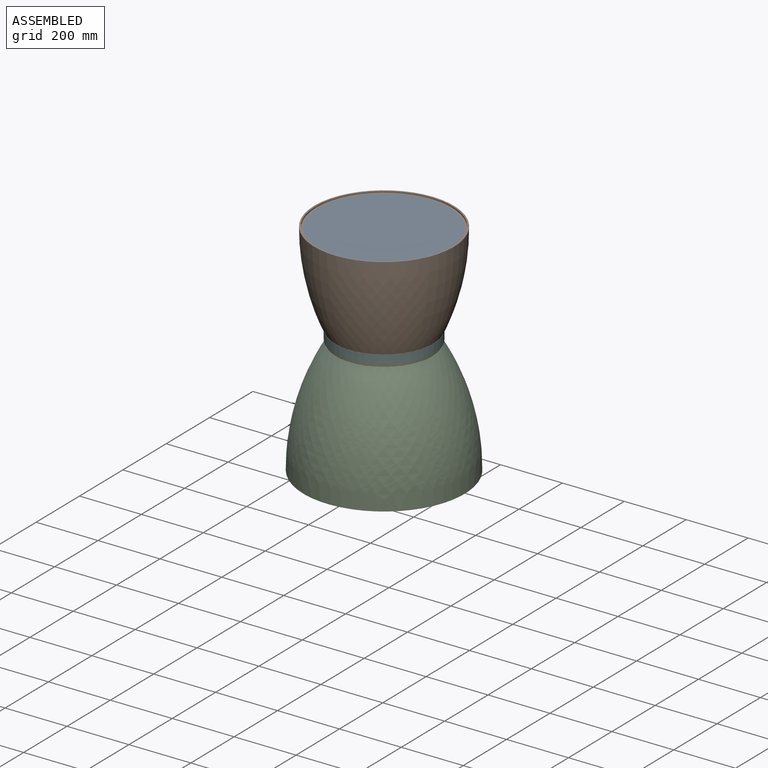
[diagram: assembled view]
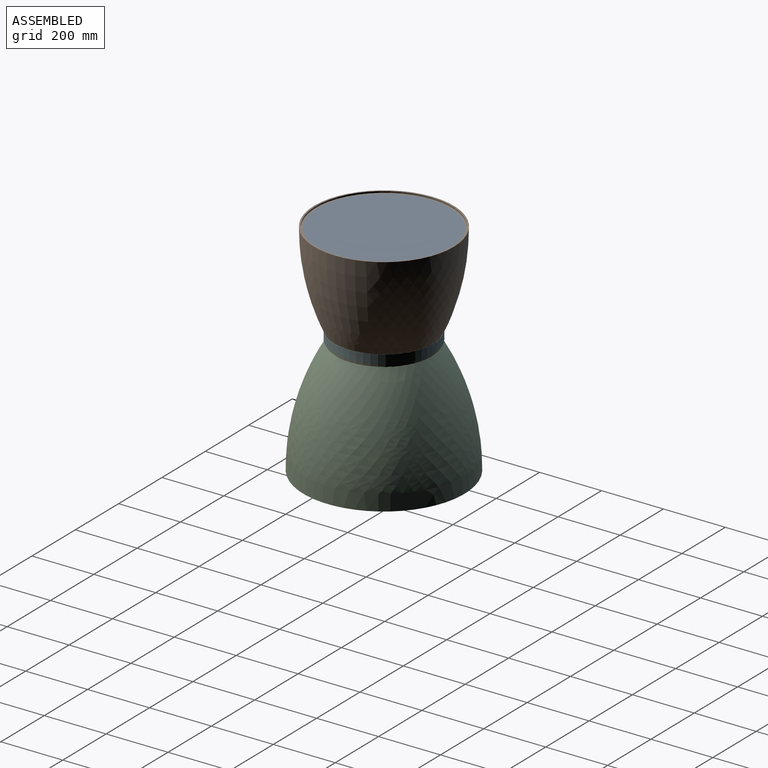
[diagram: assembled view, second angle]
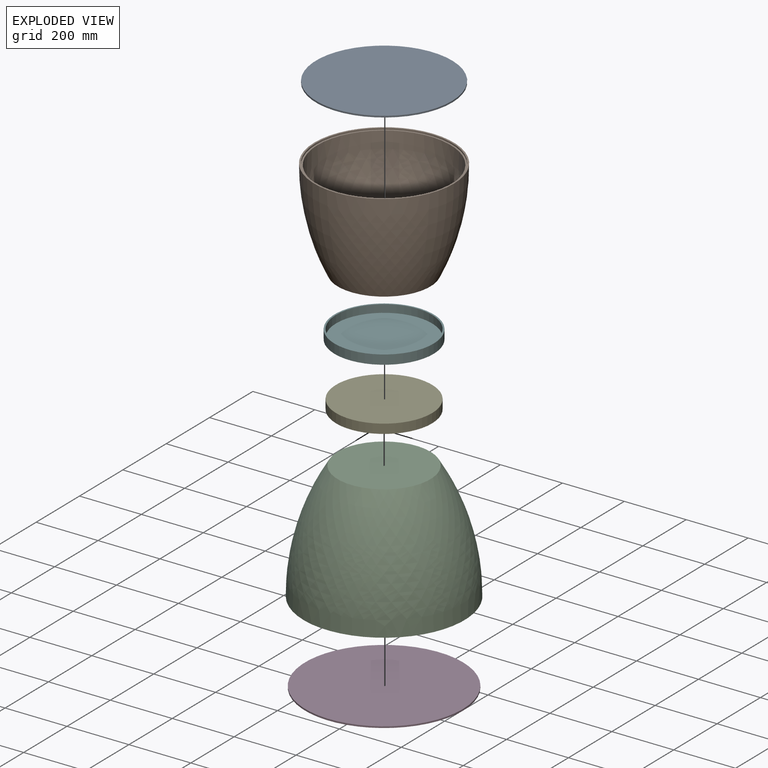
[diagram: exploded view]
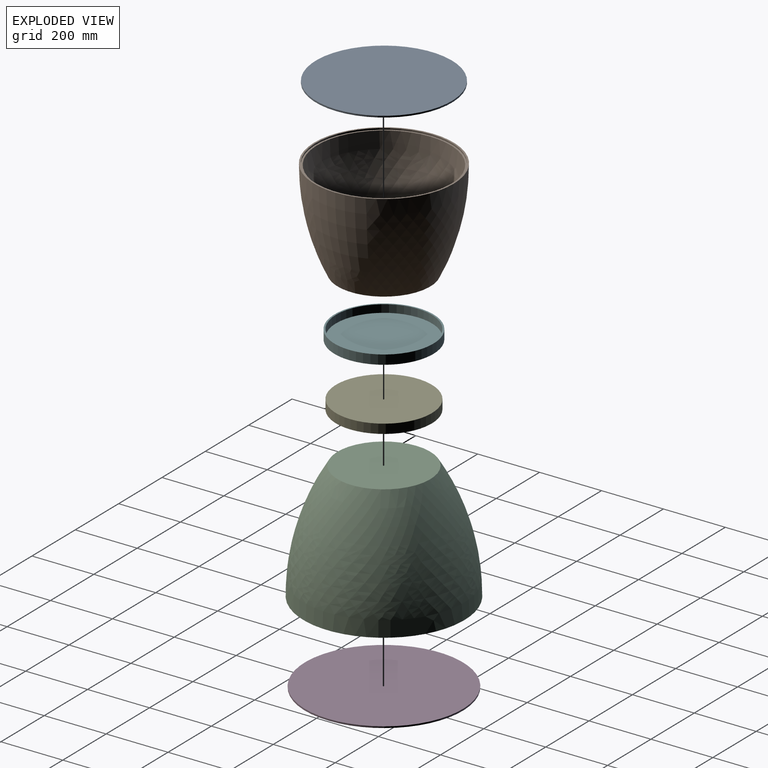
[diagram: exploded view, second angle]
ASSEMBLY  parts=6 mates=5
PART A: 3 faces, bbox 440x440x5 mm
  f0: cylinder r=220mm len=440mm, axis (0,0,-1), area 6911.5mm2, adj f1,f2
  f1: plane 440x440mm, normal (0,0,1), area 152053.1mm2, adj f0
  f2: plane 440x440mm, normal (0,0,-1), area 152053.1mm2, adj f0
PART B: 7 faces, bbox 450.5x450.5x320 mm
  f0: plane 300x300mm, normal (0,0,-1), area 70685.8mm2, adj f6
  f1: plane 287.6x287.6mm, normal (0,0,1), area 64965.1mm2, adj f2
  f2: revolved ~430.5x430.5mm, area 379312.8mm2, adj f1,f3
  f3: cone r=220.25mm half-angle=89.8deg, axis (0,0,1), area 6840.9mm2, adj f2,f4
  f4: cylinder r=220.25mm len=440.5mm, axis (0,0,-1), area 6919.4mm2, adj f3,f5
  f5: cone r=225.25mm half-angle=89.8deg, axis (0,0,1), area 6998mm2, adj f4,f6
  f6: revolved ~450.5x450.5mm, area 417305.9mm2, adj f0,f5
PART C: 7 faces, bbox 520.6x520.6x381.8 mm
  f0: plane 288.96x288.96mm, normal (0,0,1), area 65579.4mm2, adj f1
  f1: revolved ~500.6x500.6mm, area 520989.8mm2, adj f0,f2
  f2: cone r=255.3mm half-angle=89.8deg, axis (0,0,1), area 7941.9mm2, adj f1,f3
  f3: cylinder r=255.3mm len=510.6mm, axis (0,0,-1), area 8020.4mm2, adj f2,f4
  f4: cone r=260.3mm half-angle=89.8deg, axis (0,0,1), area 8099mm2, adj f3,f5
  f5: revolved ~520.6x520.6mm, area 565424.6mm2, adj f4,f6
  f6: plane 300x300mm, normal (0,0,-1), area 70685.8mm2, adj f5
PART D: 3 faces, bbox 510x510x5 mm
  f0: cylinder r=255mm len=510mm, axis (0,0,-1), area 8011.1mm2, adj f1,f2
  f1: plane 510x510mm, normal (0,0,1), area 204282.1mm2, adj f0
  f2: plane 510x510mm, normal (0,0,-1), area 204282.1mm2, adj f0
PART E: 5 faces, bbox 310x310x30 mm
  f0: cylinder r=155mm len=310mm, axis (0,0,-1), area 29216.8mm2, adj f1,f2
  f1: plane 310x310mm, normal (0,0,1), area 75476.8mm2, adj f0
  f2: plane 310x310mm, normal (0,0,-1), area 9266.8mm2, adj f0,f3
  f3: cylinder r=145.17mm len=290.35mm, axis (0,0,-1), area 22803.8mm2, adj f2,f4
  f4: plane 290.35x290.35mm, normal (0,0,-1), area 66210mm2, adj f3
PART F: 5 faces, bbox 320x320x30 mm
  f0: cylinder r=160mm len=320mm, axis (0,0,-1), area 30159.3mm2, adj f1,f2
  f1: plane 320x320mm, normal (0,0,1), area 4948mm2, adj f0,f3
  f2: plane 320x320mm, normal (0,0,-1), area 80424.8mm2, adj f0
  f3: cylinder r=155mm len=310mm, axis (0,0,1), area 24347.3mm2, adj f1,f4
  f4: plane 310x310mm, normal (0,0,1), area 75476.8mm2, adj f3
PLACE A t=(166.48,254.1,-77.04)mm
PLACE B t=(166.48,254.1,-387.02)mm
PLACE C rot(axis=(1,0,0),180deg) t=(166.48,254.1,-397.02)mm
PLACE D t=(166.48,254.1,-778.82)mm
PLACE E t=(166.48,254.1,-417.02)mm
PLACE F t=(166.48,254.1,-397.02)mm
MATE fastened B.f3 <-> E.f0  axis (0,0,-1) through (166.48,254.1,-387.02)mm
MATE fastened F.f3 <-> E.f3  axis (0,0,1) through (166.48,254.1,-392.02)mm
MATE fastened F.f0 <-> C.f2  axis (0,0,-1) through (166.48,254.1,-397.02)mm
MATE fastened D.f0 <-> C.f2  axis (0,0,1) through (166.48,254.1,-773.82)mm
MATE fastened A.f0 <-> B.f3  axis (0,0,1) through (166.48,254.1,-72.04)mm
